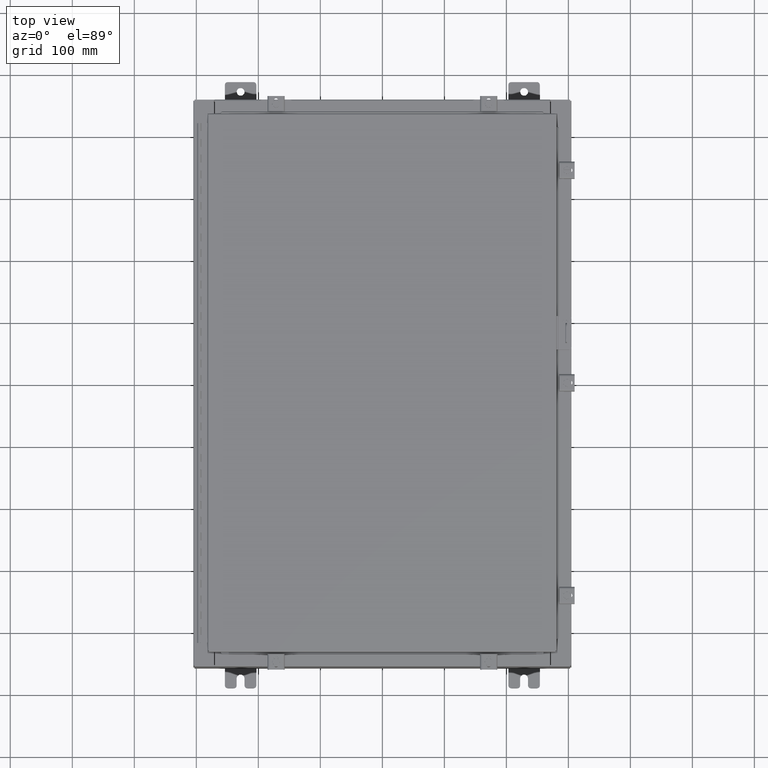
[diagram: clean part render]
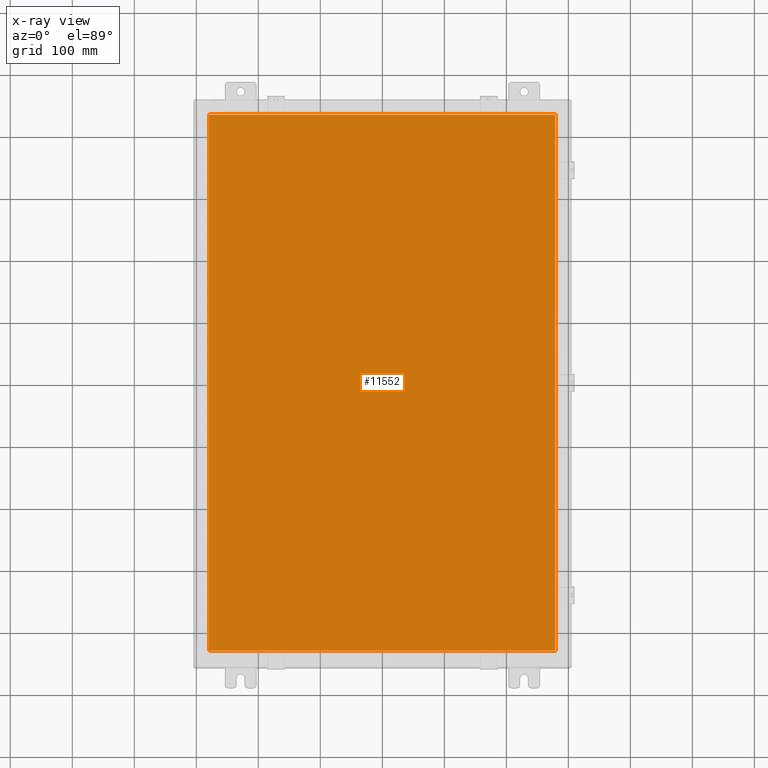
[diagram: x-ray — body ghosted, one internal face saturated and labeled with its STEP entity id]
A machine part, top view, then the same camera in x-ray: the body is ghosted and one INTERNAL B-rep face — a face not visible from any outside direction — is saturated and labeled: STEP entity #11552.
In plain terms, the highlighted planar face has unit normal (0, 0, -1).
Its self-contained STEP definition (entity closure, byte-faithful):
#130 = ORIENTED_EDGE ( 'NONE', *, *, #4515, .F. ) ;
#1295 = AXIS2_PLACEMENT_3D ( 'NONE', #16811, #31833, #19810 ) ;
#1412 = VERTEX_POINT ( 'NONE', #31105 ) ;
#2677 = CARTESIAN_POINT ( 'NONE',  ( -10.99030000000000000, -17.00629999999999600, -0.07469999999999910000 ) ) ;
#3559 = VECTOR ( 'NONE', #9355, 39.37007874015748100 ) ;
#4515 = EDGE_CURVE ( 'NONE', #1412, #6284, #36881, .T. ) ;
#6284 = VERTEX_POINT ( 'NONE', #21581 ) ;
#6405 = VECTOR ( 'NONE', #18024, 39.37007874015748100 ) ;
#6669 = CARTESIAN_POINT ( 'NONE',  ( 10.99029999999999600, -17.00629999999999200, -0.07470000000000019700 ) ) ;
#7558 = CARTESIAN_POINT ( 'NONE',  ( 10.99029999999999600, -17.00629999999999600, -0.07470000000000000300 ) ) ;
#9355 = DIRECTION ( 'NONE',  ( 1.000000000000000000, -0.0000000000000000000, -0.0000000000000000000 ) ) ;
#10800 = ORIENTED_EDGE ( 'NONE', *, *, #24390, .F. ) ;
#11552 = ADVANCED_FACE ( 'NONE', ( #31375 ), #27504, .T. ) ;
#12105 = VECTOR ( 'NONE', #32831, 39.37007874015748100 ) ;
#12284 = LINE ( 'NONE', #2677, #3559 ) ;
#16481 = EDGE_CURVE ( 'NONE', #31696, #36772, #12284, .T. ) ;
#16811 = CARTESIAN_POINT ( 'NONE',  ( 0.0000000000000000000, 0.0000000000000000000, -0.07470000000000000300 ) ) ;
#18024 = DIRECTION ( 'NONE',  ( 0.0000000000000000000, -1.000000000000000000, 0.0000000000000000000 ) ) ;
#19507 = DIRECTION ( 'NONE',  ( 0.0000000000000000000, 1.000000000000000000, 0.0000000000000000000 ) ) ;
#19810 = DIRECTION ( 'NONE',  ( -1.000000000000000000, 0.0000000000000000000, -0.0000000000000000000 ) ) ;
#21581 = CARTESIAN_POINT ( 'NONE',  ( -10.99030000000000100, 17.00630000000000700, -0.07470000000000000300 ) ) ;
#22830 = EDGE_LOOP ( 'NONE', ( #31522, #23977, #10800, #130 ) ) ;
#23642 = LINE ( 'NONE', #40681, #6405 ) ;
#23843 = CARTESIAN_POINT ( 'NONE',  ( -10.99030000000000000, -17.00629999999999600, -0.07470000000000000300 ) ) ;
#23977 = ORIENTED_EDGE ( 'NONE', *, *, #16481, .F. ) ;
#24390 = EDGE_CURVE ( 'NONE', #6284, #31696, #23642, .T. ) ;
#26310 = VECTOR ( 'NONE', #19507, 39.37007874015748100 ) ;
#27304 = LINE ( 'NONE', #6669, #26310 ) ;
#27504 = PLANE ( 'NONE',  #1295 ) ;
#31105 = CARTESIAN_POINT ( 'NONE',  ( 10.99029999999999600, 17.00630000000000700, -0.07470000000000000300 ) ) ;
#31375 = FACE_OUTER_BOUND ( 'NONE', #22830, .T. ) ;
#31522 = ORIENTED_EDGE ( 'NONE', *, *, #38576, .F. ) ;
#31696 = VERTEX_POINT ( 'NONE', #23843 ) ;
#31833 = DIRECTION ( 'NONE',  ( 0.0000000000000000000, 0.0000000000000000000, -1.000000000000000000 ) ) ;
#32831 = DIRECTION ( 'NONE',  ( -1.000000000000000000, -0.0000000000000000000, -0.0000000000000000000 ) ) ;
#35778 = CARTESIAN_POINT ( 'NONE',  ( 10.99029999999999800, 17.00630000000000700, -0.07470000000000019700 ) ) ;
#36772 = VERTEX_POINT ( 'NONE', #7558 ) ;
#36881 = LINE ( 'NONE', #35778, #12105 ) ;
#38576 = EDGE_CURVE ( 'NONE', #36772, #1412, #27304, .T. ) ;
#40681 = CARTESIAN_POINT ( 'NONE',  ( -10.99030000000000500, 17.00630000000000700, -0.07470000000000347200 ) ) ;